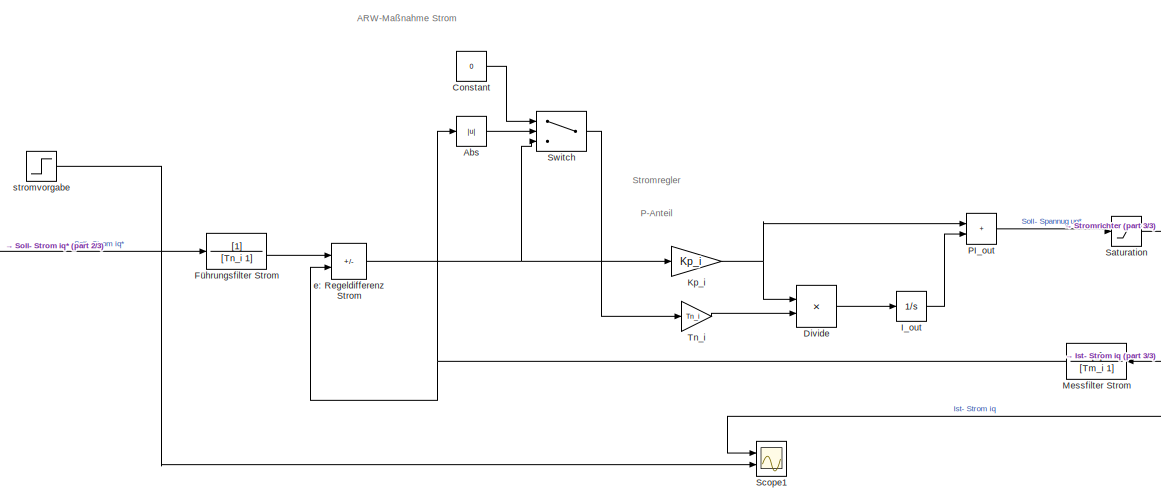
[diagram: root canvas - part 1/3, center side, full height]
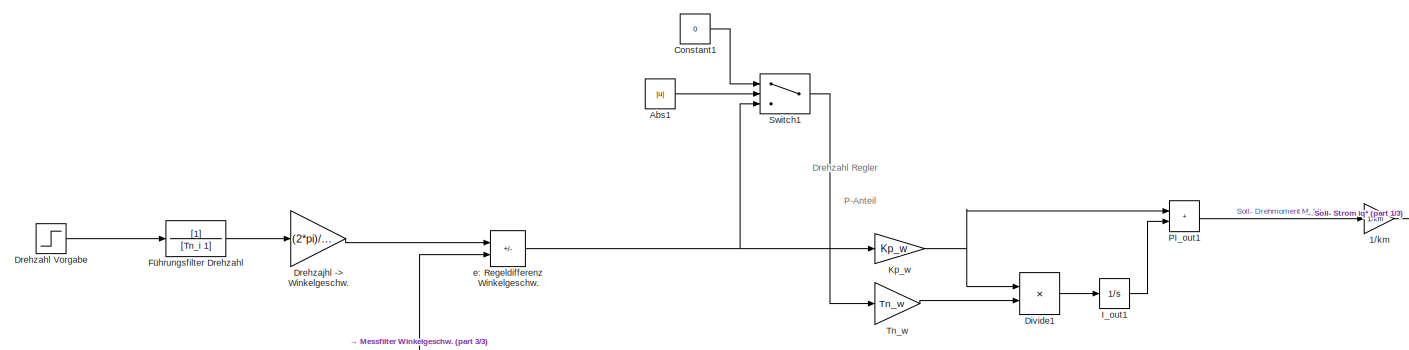
[diagram: root canvas - part 2/3, middle left region]
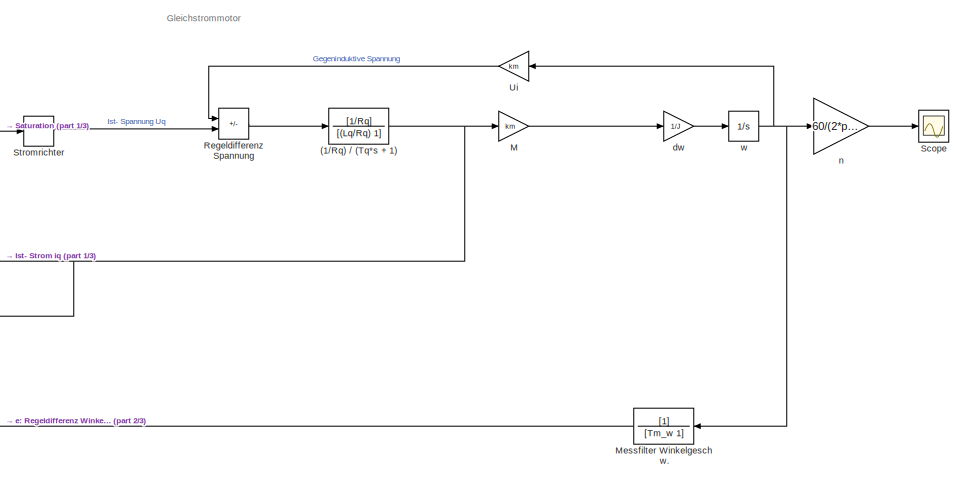
[diagram: root canvas - part 3/3, right side, full height]
MODEL slx_2a7a42d520cf
KIND model
CONFIG AbsTol = auto
CONFIG EnableMultiTasking = off
CONFIG FixedStep = T_tast/100
CONFIG MaxStep = auto
CONFIG MinStep = auto
CONFIG PostLoadFcn = , if any(exist('dsrtsu_mdlpostloadfcn', 'file') == [2, 3, 6]), try dsrtsu_mdlpostloadfcn('Execute', bdroot); catch fprintf('Error in PostLoadFcn (dsrtsu_mdlpostloadfcn) for model "%s":\n %s\n', bdroot, lasterr); end, end, \n,try, xsg_acmc_mdl_postloadfcn(bdroot, 'UpdateModel', 170100); catch, disp(lasterr); end, 
CONFIG PreLoadFcn = ,try, xsg_acmc_mdl_preloadfcn(bdroot, 'LoadModel'); catch, disp(lasterr); end, 
CONFIG RelTol = 1e-9
CONFIG SampleTimeConstraint = Unconstrained
CONFIG SolverName = ode45
CONFIG StartTime = 0
CONFIG StopTime = 0.2
BLOCK [TransferFcn] (1//Rq) // (Tq*s + 1)
  Denominator = [(Lq/Rq) 1]
  Numerator = [1/Rq]
BLOCK [Gain] 1//km
  Gain = 1/km
BLOCK [Abs] Abs
  SaturateOnIntegerOverflow = off
BLOCK [Abs] Abs1
  SaturateOnIntegerOverflow = off
BLOCK [Constant] Constant
  Value = 0
BLOCK [Constant] Constant1
  Value = 0
BLOCK [Product] Divide
  Inputs = */
  Ports = [2, 1]
BLOCK [Product] Divide1
  Inputs = */
  Ports = [2, 1]
BLOCK [Step] Drehzahl Vorgabe
  After = 1250
  SampleTime = 0
  Time = 0.1
BLOCK [Gain] Drehzajhl -> Winkelgeschw.
  Gain = (2*pi)/60
BLOCK [TransferFcn] Führungsfilter Drehzahl
  Denominator = [Tn_i 1]
BLOCK [TransferFcn] Führungsfilter Strom
  Denominator = [Tn_i 1]
BLOCK [Integrator] I_out
  Ports = [1, 1]
BLOCK [Integrator] I_out1
  Ports = [1, 1]
BLOCK [Gain] Kp_i
  Gain = Kp_i
BLOCK [Gain] Kp_w
  Gain = Kp_w
BLOCK [Gain] M 
  Gain = km
BLOCK [TransferFcn] Messfilter Strom
  Denominator = [Tm_i 1]
BLOCK [TransferFcn] Messfilter Winkelgeschw.
  Denominator = [Tm_w 1]
BLOCK [Sum] PI_out
  IconShape = rectangular
  Ports = [2, 1]
BLOCK [Sum] PI_out1
  IconShape = rectangular
  Ports = [2, 1]
BLOCK [Sum] Regeldifferenz Spannung
  IconShape = rectangular
  Inputs = -+
  Ports = [2, 1]
BLOCK [Saturate] Saturation
  LowerLimit = -Ud
  UpperLimit = Ud
BLOCK [Scope] Scope
  Floating = off
  NumInputPorts = 1
  Ports = [1]
  ScopeSpecificationString = Simulink.scopes.TimeScopeBlockCfg('CurrentConfiguration', extmgr.ConfigurationSet(extmgr.Configuration('Core','General UI',true),extmgr.Configuration('Core','Source UI',true),extmgr.Configuration('Sources','WiredSimulink',true,'DataLoggingVariableName','ScopeData1'),extmgr.Configuration('Visuals','Time Domain',true,'SerializedDisplays',{struct('MinYLimReal','-1.00000','MaxYLimReal','1.00000','YLab...<+1402ch>
BLOCK [Scope] Scope1
  AttributesFormatString = %<ActiveDisplayString>
  Floating = off
  NumInputPorts = 2
  Ports = [2]
  ScopeSpecificationString = Simulink.scopes.TimeScopeBlockCfg('CurrentConfiguration', extmgr.ConfigurationSet(extmgr.Configuration('Core','General UI',true),extmgr.Configuration('Core','Source UI',true),extmgr.Configuration('Sources','WiredSimulink',true,'DataLoggingVariableName','ScopeData1'),extmgr.Configuration('Visuals','Time Domain',true,'SerializedDisplays',{struct('MinYLimReal','-0.31942','MaxYLimReal','2.8673','YLabe...<+1494ch>
BLOCK [TransportDelay] Stromrichter
  DelayTime = Ts/2
  Ports = [1, 1]
BLOCK [Switch] Switch
  InputSameDT = off
  SaturateOnIntegerOverflow = off
  Threshold = i_max
BLOCK [Switch] Switch1
  InputSameDT = off
  SaturateOnIntegerOverflow = off
  Threshold = i_max
BLOCK [Gain] Tn_i
  Gain = Tn_i
BLOCK [Gain] Tn_w
  Gain = Tn_w
BLOCK [Gain] Ui
  Gain = km
BLOCK [Gain] dw 
  Gain = 1/J
BLOCK [Sum] e: Regeldifferenz Strom
  IconShape = rectangular
  Inputs = +-
  Ports = [2, 1]
BLOCK [Sum] e: Regeldifferenz Winkelgeschw.
  IconShape = rectangular
  Inputs = +-
  Ports = [2, 1]
BLOCK [Gain] n
  Gain = 60/(2*pi)
BLOCK [Step] stromvorgabe
  After = i_soll
  SampleTime = 0
  Time = 0.1
BLOCK [Integrator] w
  Ports = [1, 1]
ANNOTATION (root): ARW-Maßnahme Strom
ANNOTATION (root): Drehzahl Regler
ANNOTATION (root): Gleichstrommotor
ANNOTATION (root): P-Anteil
ANNOTATION (root): Stromregler
NET (1//Rq) // (Tq*s + 1):1 -> M :1, Messfilter Strom:1, Scope1:1
LINE 1//km:1 -> Führungsfilter Strom:1
LINE Abs1:1 -> Switch1:2
LINE Abs:1 -> Switch:2
LINE Constant1:1 -> Switch1:1
LINE Constant:1 -> Switch:1
LINE Divide1:1 -> I_out1:1
LINE Divide:1 -> I_out:1
LINE Drehzahl Vorgabe:1 -> Führungsfilter Drehzahl:1
LINE Drehzajhl -> Winkelgeschw.:1 -> e: Regeldifferenz Winkelgeschw.:1
LINE Führungsfilter Drehzahl:1 -> Drehzajhl -> Winkelgeschw.:1
LINE Führungsfilter Strom:1 -> e: Regeldifferenz Strom:1
LINE I_out1:1 -> PI_out1:2
LINE I_out:1 -> PI_out:2
NET Kp_i:1 -> Divide:1, PI_out:1
NET Kp_w:1 -> Divide1:1, PI_out1:1
LINE M :1 -> dw :1
NET Messfilter Strom:1 -> Abs:1, e: Regeldifferenz Strom:2
LINE Messfilter Winkelgeschw.:1 -> e: Regeldifferenz Winkelgeschw.:2
LINE PI_out1:1 -> 1//km:1
LINE PI_out:1 -> Saturation:1
LINE Regeldifferenz Spannung:1 -> (1//Rq) // (Tq*s + 1):1
LINE Saturation:1 -> Stromrichter:1
LINE Stromrichter:1 -> Regeldifferenz Spannung:2
LINE Switch1:1 -> Tn_w:1
LINE Switch:1 -> Tn_i:1
LINE Tn_i:1 -> Divide:2
LINE Tn_w:1 -> Divide1:2
LINE Ui:1 -> Regeldifferenz Spannung:1
LINE dw :1 -> w:1
NET e: Regeldifferenz Strom:1 -> Kp_i:1, Switch:3
NET e: Regeldifferenz Winkelgeschw.:1 -> Kp_w:1, Switch1:3
LINE n:1 -> Scope:1
LINE stromvorgabe:1 -> Scope1:2
NET w:1 -> Messfilter Winkelgeschw.:1, Ui:1, n:1
note: NET lines group one-source signal fan-out (src -> all destinations, sorted); 1:1 wires keep LINE
